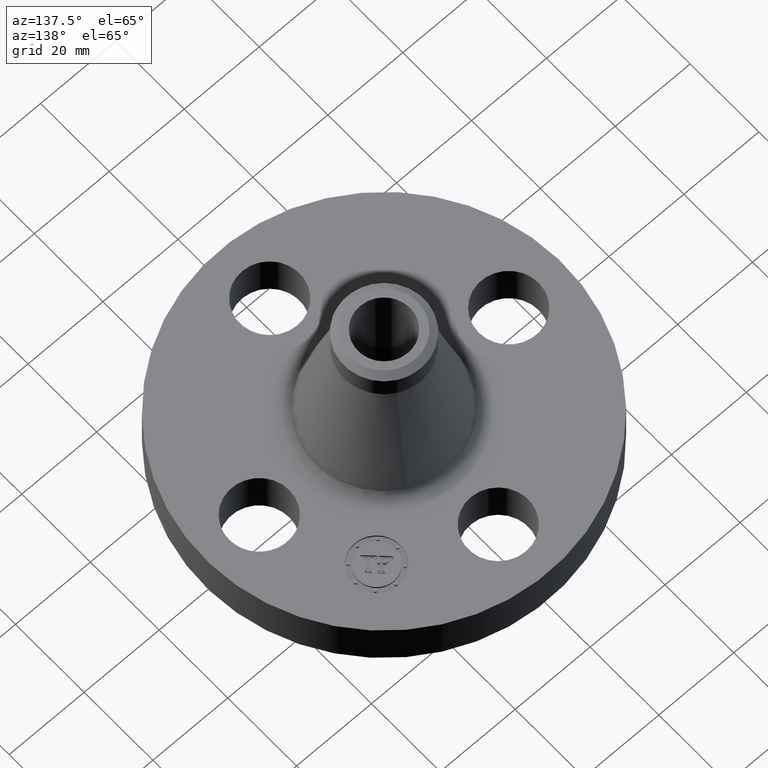
[diagram: clean part render]
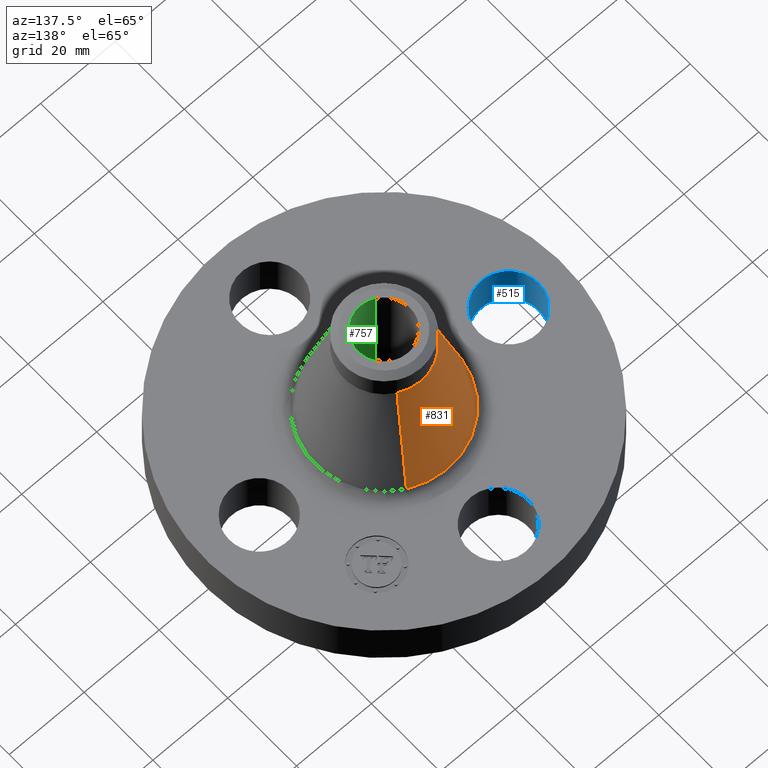
[diagram: same view with three faces highlighted in distinct colors, each labeled with its STEP entity id]
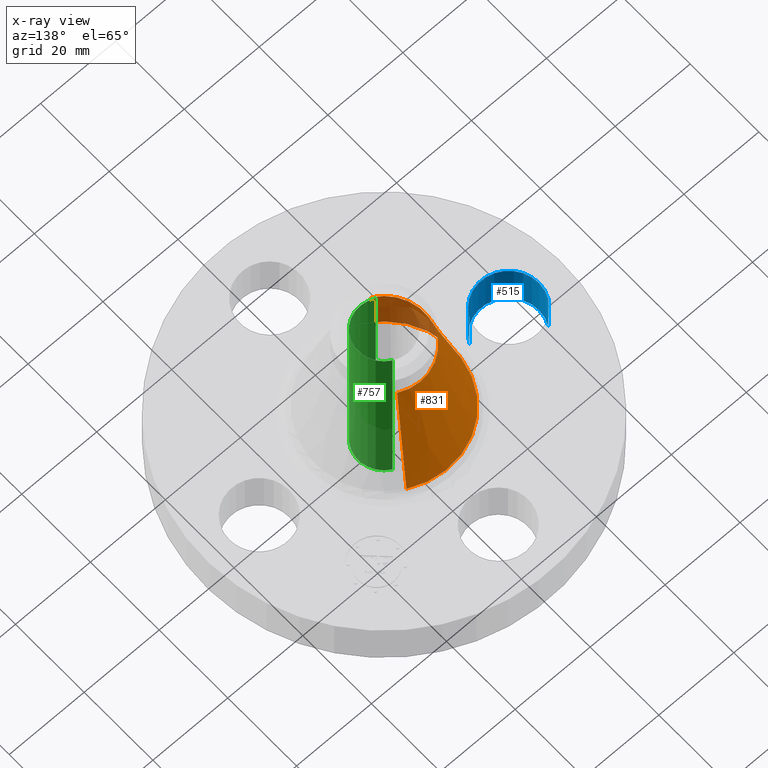
[diagram: x-ray of the same camera — body ghosted, the three highlighted faces saturated]
A machine part, auxiliary view with three faces highlighted in distinct colors.
The next image is the same camera in x-ray (body ghosted, the three faces saturated) — at least one of them is partly hidden behind the body in this view.
Their STEP definitions:

[orange] entity #831 — the highlighted conical surface has half-angle 15.238 deg.
#604=AXIS2_PLACEMENT_3D('Circle Axis2P3D',#602,#603,$) ;
#804=AXIS2_PLACEMENT_3D('Cone Axis2P3D',#801,#802,#803) ;
#815=AXIS2_PLACEMENT_3D('Circle Axis2P3D',#813,#814,$) ;
#599=CARTESIAN_POINT('Vertex',(-0.348016189981,-0.637039362717,0.5884599252)) ;
#602=CARTESIAN_POINT('Axis2P3D Location',(0.,0.,0.5884599252)) ;
#606=CARTESIAN_POINT('Vertex',(0.348016189981,0.637039362717,0.5884599252)) ;
#801=CARTESIAN_POINT('Axis2P3D Location',(0.,0.,1.71140190821)) ;
#806=CARTESIAN_POINT('Line Origine',(-0.274687458098,-0.502812019356,1.14993091671)) ;
#810=CARTESIAN_POINT('Vertex',(-0.201358726215,-0.368584675996,1.71140190821)) ;
#813=CARTESIAN_POINT('Axis2P3D Location',(0.,0.,1.71140190821)) ;
#817=CARTESIAN_POINT('Vertex',(0.201358726215,0.368584675996,1.71140190821)) ;
#820=CARTESIAN_POINT('Line Origine',(0.274687458098,0.502812019356,1.14993091671)) ;
#603=DIRECTION('Axis2P3D Direction',(-0.,0.,-0.0393700787402)) ;
#802=DIRECTION('Axis2P3D Direction',(0.,0.,-0.0393700787402)) ;
#803=DIRECTION('Axis2P3D XDirection',(-0.0188750212049,-0.0345504945626,0.)) ;
#807=DIRECTION('Vector Direction',(-0.00496099650577,-0.00908104319126,-0.0379858693231)) ;
#814=DIRECTION('Axis2P3D Direction',(-0.,0.,-0.0393700787402)) ;
#821=DIRECTION('Vector Direction',(0.00496099650577,0.00908104319126,-0.0379858693231)) ;
#808=VECTOR('Line Direction',#807,0.0393700787402) ;
#822=VECTOR('Line Direction',#821,0.0393700787402) ;
#826=ORIENTED_EDGE('',*,*,#608,.F.) ;
#827=ORIENTED_EDGE('',*,*,#812,.T.) ;
#828=ORIENTED_EDGE('',*,*,#819,.T.) ;
#829=ORIENTED_EDGE('',*,*,#824,.F.) ;
#831=ADVANCED_FACE('PartBody',(#830),#805,.T.) ;
#605=CIRCLE('generated circle',#604,0.725902485283) ;
#816=CIRCLE('generated circle',#815,0.420000000002) ;
#805=CONICAL_SURFACE('Cone',#804,0.420000000002,0.265958259364) ;
#608=EDGE_CURVE('',#600,#607,#605,.T.) ;
#812=EDGE_CURVE('',#600,#811,#809,.F.) ;
#819=EDGE_CURVE('',#811,#818,#816,.T.) ;
#824=EDGE_CURVE('',#607,#818,#823,.F.) ;
#825=EDGE_LOOP('',(#826,#827,#828,#829)) ;
#830=FACE_OUTER_BOUND('',#825,.T.) ;
#809=LINE('Line',#806,#808) ;
#823=LINE('Line',#820,#822) ;
#600=VERTEX_POINT('',#599) ;
#607=VERTEX_POINT('',#606) ;
#811=VERTEX_POINT('',#810) ;
#818=VERTEX_POINT('',#817) ;

[blue] entity #515 — the highlighted cylindrical surface (partial cylindrical patch) has radius 8.001 mm, axis along (0, 0, -1).
#201=AXIS2_PLACEMENT_3D('Circle Axis2P3D',#199,#200,$) ;
#317=AXIS2_PLACEMENT_3D('Circle Axis2P3D',#315,#316,$) ;
#497=AXIS2_PLACEMENT_3D('Cylinder Axis2P3D',#494,#495,#496) ;
#199=CARTESIAN_POINT('Axis2P3D Location',(-1.31000000001,2.96106096772E-013,0.)) ;
#203=CARTESIAN_POINT('Vertex',(-1.03356149304,-0.151019044675,0.)) ;
#205=CARTESIAN_POINT('Vertex',(-1.58643850697,0.151019044675,0.)) ;
#310=CARTESIAN_POINT('Vertex',(-1.58643850697,0.151019044685,0.500000000002)) ;
#312=CARTESIAN_POINT('Vertex',(-1.03356149301,-0.151019044661,0.499999999987)) ;
#315=CARTESIAN_POINT('Axis2P3D Location',(-1.31000000004,-4.64767681908E-011,0.500000000002)) ;
#494=CARTESIAN_POINT('Axis2P3D Location',(-1.31000000001,-1.60428730689E-016,0.496062992128)) ;
#499=CARTESIAN_POINT('Line Origine',(-1.03356149301,-0.151019044661,0.250000000001)) ;
#504=CARTESIAN_POINT('Line Origine',(-1.58643850701,0.151019044661,0.250000000001)) ;
#200=DIRECTION('Axis2P3D Direction',(0.,0.,-0.0393700787402)) ;
#316=DIRECTION('Axis2P3D Direction',(0.,0.,-0.0393700787402)) ;
#495=DIRECTION('Axis2P3D Direction',(0.,0.,-0.0393700787402)) ;
#496=DIRECTION('Axis2P3D XDirection',(0.0345504945626,-0.0188750212049,0.)) ;
#500=DIRECTION('Vector Direction',(0.,0.,-0.0393700787402)) ;
#505=DIRECTION('Vector Direction',(0.,0.,-0.0393700787402)) ;
#501=VECTOR('Line Direction',#500,0.0393700787402) ;
#506=VECTOR('Line Direction',#505,0.0393700787402) ;
#510=ORIENTED_EDGE('',*,*,#503,.F.) ;
#511=ORIENTED_EDGE('',*,*,#207,.T.) ;
#512=ORIENTED_EDGE('',*,*,#508,.T.) ;
#513=ORIENTED_EDGE('',*,*,#319,.F.) ;
#515=ADVANCED_FACE('PartBody',(#514),#498,.F.) ;
#202=CIRCLE('generated circle',#201,0.314999999981) ;
#318=CIRCLE('generated circle',#317,0.314999999981) ;
#498=CYLINDRICAL_SURFACE('generated cylinder',#497,0.315000000001) ;
#207=EDGE_CURVE('',#204,#206,#202,.T.) ;
#319=EDGE_CURVE('',#313,#311,#318,.T.) ;
#503=EDGE_CURVE('',#204,#313,#502,.F.) ;
#508=EDGE_CURVE('',#206,#311,#507,.F.) ;
#509=EDGE_LOOP('',(#510,#511,#512,#513)) ;
#514=FACE_OUTER_BOUND('',#509,.T.) ;
#502=LINE('Line',#499,#501) ;
#507=LINE('Line',#504,#506) ;
#204=VERTEX_POINT('',#203) ;
#206=VERTEX_POINT('',#205) ;
#311=VERTEX_POINT('',#310) ;
#313=VERTEX_POINT('',#312) ;

[green] entity #757 — the highlighted cylindrical surface (edge-blend (fillet) strip) has radius 6.9342 mm, axis along (0, 0, -1).
#422=AXIS2_PLACEMENT_3D('Circle Axis2P3D',#420,#421,$) ;
#730=AXIS2_PLACEMENT_3D('Cylinder Axis2P3D',#727,#728,#729) ;
#734=AXIS2_PLACEMENT_3D('Circle Axis2P3D',#732,#733,$) ;
#420=CARTESIAN_POINT('Axis2P3D Location',(-6.99353086378E-017,2.96036161464E-013,0.)) ;
#424=CARTESIAN_POINT('Vertex',(0.13088317204,0.239580039397,-1.46668329275E-011)) ;
#426=CARTESIAN_POINT('Vertex',(-0.130883172066,-0.239580039404,0.)) ;
#727=CARTESIAN_POINT('Axis2P3D Location',(0.,0.,1.)) ;
#732=CARTESIAN_POINT('Axis2P3D Location',(0.,0.,2.00000000001)) ;
#736=CARTESIAN_POINT('Vertex',(0.130883172066,0.239580039422,2.00000000001)) ;
#738=CARTESIAN_POINT('Vertex',(-0.13088317204,-0.239580039397,2.00000000001)) ;
#741=CARTESIAN_POINT('Line Origine',(0.13088317204,0.239580039397,1.)) ;
#746=CARTESIAN_POINT('Line Origine',(-0.13088317204,-0.239580039397,1.)) ;
#421=DIRECTION('Axis2P3D Direction',(0.,0.,-0.0393700787402)) ;
#728=DIRECTION('Axis2P3D Direction',(0.,0.,-0.0393700787402)) ;
#729=DIRECTION('Axis2P3D XDirection',(0.0188750212048,0.0345504945626,0.)) ;
#733=DIRECTION('Axis2P3D Direction',(0.,0.,-0.0393700787402)) ;
#742=DIRECTION('Vector Direction',(0.,0.,-0.0393700787402)) ;
#747=DIRECTION('Vector Direction',(0.,0.,-0.0393700787402)) ;
#743=VECTOR('Line Direction',#742,0.0393700787402) ;
#748=VECTOR('Line Direction',#747,0.0393700787402) ;
#752=ORIENTED_EDGE('',*,*,#740,.F.) ;
#753=ORIENTED_EDGE('',*,*,#745,.T.) ;
#754=ORIENTED_EDGE('',*,*,#428,.T.) ;
#755=ORIENTED_EDGE('',*,*,#750,.F.) ;
#757=ADVANCED_FACE('PartBody',(#756),#731,.F.) ;
#423=CIRCLE('generated circle',#422,0.27300000002) ;
#735=CIRCLE('generated circle',#734,0.273000000001) ;
#731=CYLINDRICAL_SURFACE('generated cylinder',#730,0.273000000001) ;
#428=EDGE_CURVE('',#425,#427,#423,.T.) ;
#740=EDGE_CURVE('',#737,#739,#735,.T.) ;
#745=EDGE_CURVE('',#737,#425,#744,.T.) ;
#750=EDGE_CURVE('',#739,#427,#749,.T.) ;
#751=EDGE_LOOP('',(#752,#753,#754,#755)) ;
#756=FACE_OUTER_BOUND('',#751,.T.) ;
#744=LINE('Line',#741,#743) ;
#749=LINE('Line',#746,#748) ;
#425=VERTEX_POINT('',#424) ;
#427=VERTEX_POINT('',#426) ;
#737=VERTEX_POINT('',#736) ;
#739=VERTEX_POINT('',#738) ;